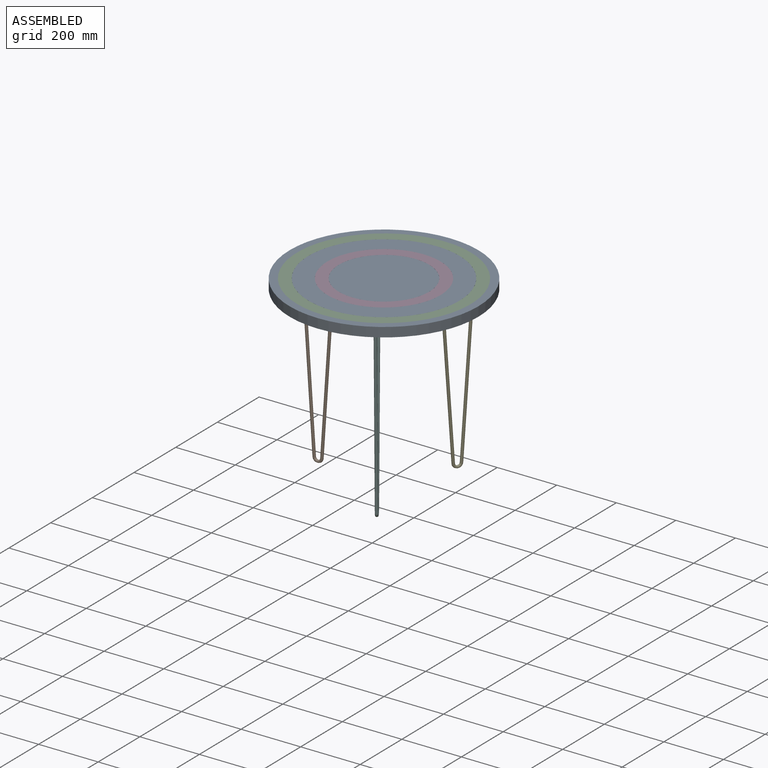
[diagram: assembled view]
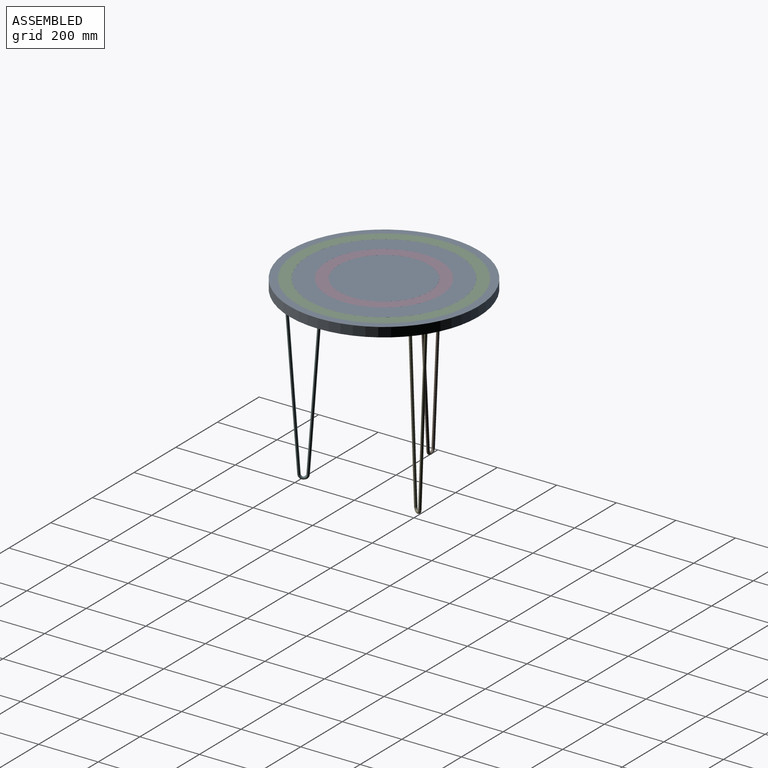
[diagram: assembled view, second angle]
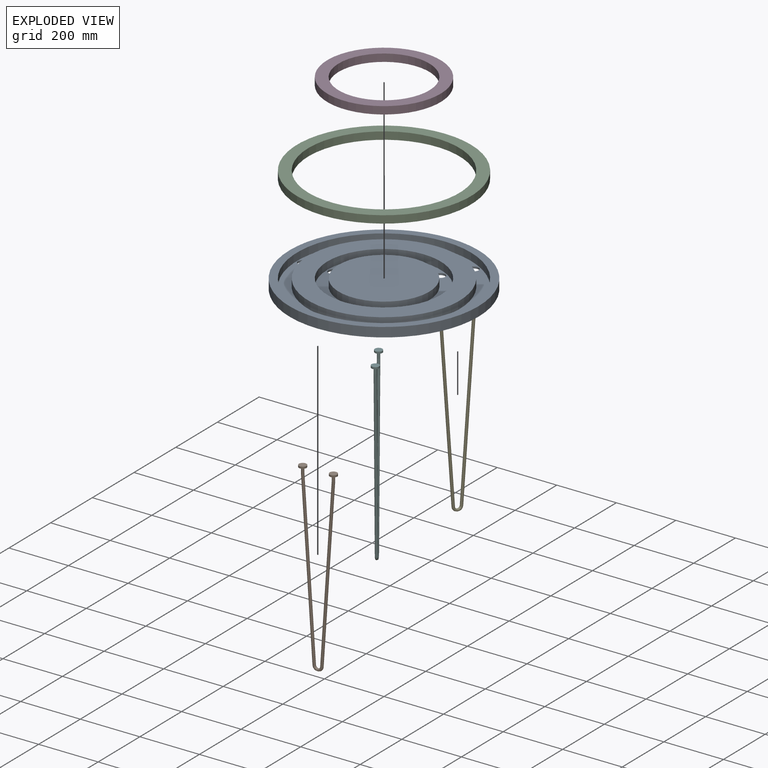
[diagram: exploded view]
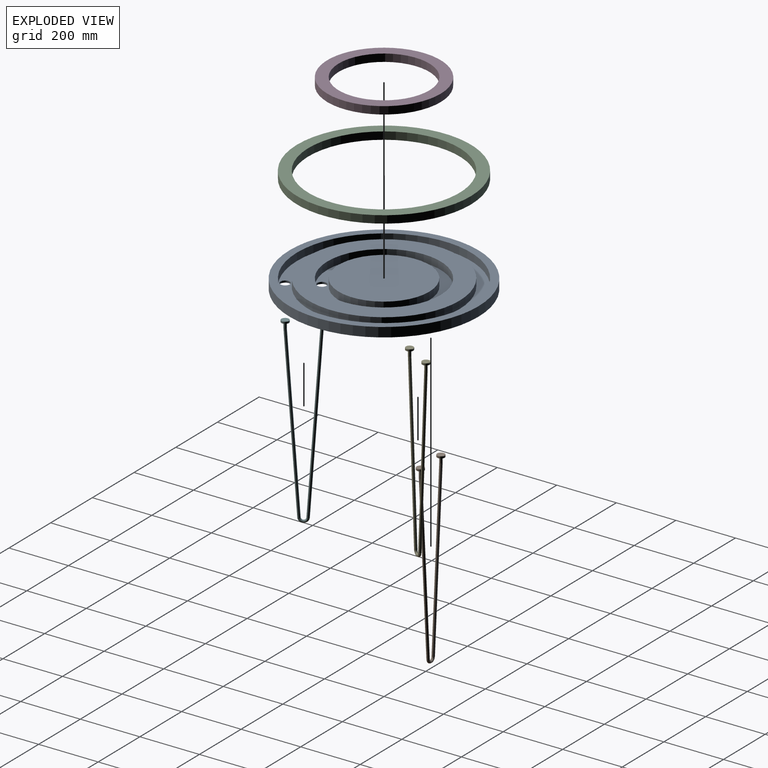
[diagram: exploded view, second angle]
ASSEMBLY  parts=6 mates=7
PART A: 17 faces, bbox 635x635x31.8 mm
  f0: cylinder r=317.5mm len=635mm, axis (0,0,-1), area 63338.4mm2, adj f1,f2
  f1: plane 635x635mm, normal (0,0,1), area 48643.9mm2, adj f0,f4
  f2: plane 635x635mm, normal (0,0,-1), area 311941.8mm2, adj f0,f11,f12,f13,f14,f15,f16
  f3: cylinder r=254mm len=508mm, axis (0,0,1), area 40536.6mm2, adj f5,f6
  f4: cylinder r=292.1mm len=584.2mm, axis (0,0,1), area 46617.1mm2, adj f1,f5
  f5: plane 584.2x584.2mm, normal (0,0,1), area 62990.1mm2, adj f3,f4,f14,f15,f16
  f6: plane 508x508mm, normal (0,0,1), area 88673.8mm2, adj f3,f8
  f7: cylinder r=152.4mm len=304.8mm, axis (0,0,1), area 24322mm2, adj f9,f10
  f8: cylinder r=190.5mm len=381mm, axis (0,0,1), area 30402.4mm2, adj f6,f9
  f9: plane 381x381mm, normal (0,0,1), area 38668.1mm2, adj f7,f8,f11,f12,f13
  f10: plane 304.8x304.8mm, normal (0,0,1), area 72965.9mm2, adj f7
  f11: cylinder r=15.88mm len=31.75mm, axis (0,0,1), area 633.4mm2, adj f2,f9
  f12: cylinder r=15.88mm len=31.75mm, axis (0,0,1), area 633.4mm2, adj f2,f9
  f13: cylinder r=15.88mm len=31.75mm, axis (0,0,1), area 633.4mm2, adj f2,f9
  f14: cylinder r=15.88mm len=31.75mm, axis (0,0,1), area 633.4mm2, adj f2,f5
  f15: cylinder r=15.88mm len=31.75mm, axis (0,0,1), area 633.4mm2, adj f2,f5
  f16: cylinder r=15.88mm len=31.75mm, axis (0,0,1), area 633.4mm2, adj f2,f5
PART B: 13 faces, bbox 128.4x26.8x614.7 mm
  f0: cylinder r=4.76mm len=19.05mm, axis (0,0,-1), area 570mm2, adj f6,f11
  f1: cylinder r=4.76mm len=19.05mm, axis (0,0,-1), area 570mm2, adj f4,f8
  f2: plane 10.87x6.11mm, normal (0.13,0,0.99), area 35.6mm2, adj f3,f5
  f3: bspline ~34.73x16.66mm, area 1140.6mm2, adj f2,f4,f6
  f4: bspline ~571.92x47.65mm, area 17166.1mm2, adj f1,f3
  f5: plane 10.88x6.15mm, normal (0,0,-1), area 35.6mm2, adj f2,f6
  f6: bspline ~577.64x48.03mm, area 17166.1mm2, adj f0,f3,f5
  f7: cylinder r=12.7mm len=25.4mm, axis (0,0,1), area 506.7mm2, adj f8,f9
  f8: plane 25.4x25.4mm, normal (0,0,-1), area 435.5mm2, adj f1,f7
  f9: plane 25.4x25.4mm, normal (0,0,1), area 506.7mm2, adj f7
  f10: cylinder r=12.7mm len=25.4mm, axis (0,0,1), area 506.7mm2, adj f11,f12
  f11: plane 25.4x25.4mm, normal (0,0,-1), area 435.5mm2, adj f0,f10
  f12: plane 25.4x25.4mm, normal (0,0,1), area 506.7mm2, adj f10
PART C: 34 faces, bbox 584.2x584.2x25.4 mm
  f0: cylinder r=15.88mm len=31.75mm, axis (0,0,-1), area 667.5mm2, adj f1,f3,f5,f6,f8,f9,f10
  f1: plane 99.95x86.98mm, normal (0,0,-1), area 2967.3mm2, adj f0,f2,f8,f9
  f2: cylinder r=15.88mm len=31.75mm, axis (0,0,-1), area 1210.8mm2, adj f1,f3,f7,f8,f9
  f3: plane 96.4x90mm, normal (0,0,1), area 2211.3mm2, adj f0,f2,f4,f5,f6,f8,f9
  f4: plane 7.3x6.13mm, normal (0.77,-0.64,0), area 36.3mm2, adj f3,f5,f6,f10
  f5: cylinder r=277.81mm len=60.89mm, axis (0,0,-1), area 311.3mm2, adj f0,f3,f4,f10
  f6: cylinder r=268.29mm len=58.49mm, axis (0,0,-1), area 299.5mm2, adj f0,f3,f4,f10
  f7: plane 31.75x31.75mm, normal (0,0,-1), area 791.7mm2, adj f2
  f8: cylinder r=355.6mm len=75.21mm, axis (0,0,1), area 625.4mm2, adj f0,f1,f2,f3
  f9: cylinder r=254mm len=68.32mm, axis (0,0,1), area 569.3mm2, adj f0,f1,f2,f3
  f10: plane 584.2x584.2mm, normal (0,0,-1), area 60722.1mm2, adj f0,f4,f5,f6,f17,f18,f19,f20
  f11: plane 31.75x31.75mm, normal (0,0,-1), area 791.7mm2, adj f12
  f12: cylinder r=15.88mm len=31.75mm, axis (0,0,-1), area 1210.8mm2, adj f11,f13,f14,f15,f16
  f13: cylinder r=355.6mm len=92.25mm, axis (0,0,1), area 625.4mm2, adj f12,f14,f16,f20
  f14: plane 107.68x63.72mm, normal (0,0,-1), area 2967.3mm2, adj f12,f13,f15,f20
  f15: cylinder r=254mm len=83.81mm, axis (0,0,1), area 569.3mm2, adj f12,f14,f16,f20
  f16: plane 111.96x62.02mm, normal (0,0,1), area 2211.3mm2, adj f12,f13,f15,f17,f18,f19,f20
  f17: cylinder r=268.29mm len=74.38mm, axis (0,0,-1), area 299.5mm2, adj f10,f16,f19,f20
  f18: cylinder r=277.81mm len=77.26mm, axis (0,0,-1), area 311.3mm2, adj f10,f16,f19,f20
  f19: plane 9.39x3.81mm, normal (0.17,0.98,0), area 36.3mm2, adj f10,f16,f17,f18
  f20: cylinder r=15.88mm len=31.75mm, axis (0,0,-1), area 667.5mm2, adj f10,f13,f14,f15,f16,f17,f18
  f21: cylinder r=254mm len=508mm, axis (0,0,-1), area 40536.6mm2, adj f10,f22
  f22: plane 584.2x584.2mm, normal (0,0,1), area 65365.3mm2, adj f21,f23
  f23: cylinder r=292.1mm len=584.2mm, axis (0,0,-1), area 46617.1mm2, adj f10,f22
  f24: plane 31.75x31.75mm, normal (0,0,-1), area 791.7mm2, adj f25
  f25: cylinder r=15.88mm len=31.75mm, axis (0,0,-1), area 1210.8mm2, adj f24,f26,f27,f28,f29
  f26: cylinder r=355.6mm len=96.68mm, axis (0,0,1), area 625.4mm2, adj f25,f27,f29,f33
  f27: plane 113.65x47.24mm, normal (0,0,-1), area 2967.3mm2, adj f25,f26,f28,f33
  f28: cylinder r=254mm len=87.83mm, axis (0,0,1), area 569.3mm2, adj f25,f27,f29,f33
  f29: plane 109.2x48.18mm, normal (0,0,1), area 2211.3mm2, adj f25,f26,f28,f30,f31,f32,f33
  f30: cylinder r=268.29mm len=76.71mm, axis (0,0,-1), area 299.5mm2, adj f10,f29,f32,f33
  f31: cylinder r=277.81mm len=79.76mm, axis (0,0,-1), area 311.3mm2, adj f10,f29,f32,f33
  f32: plane 8.96x3.81mm, normal (-0.94,-0.34,0), area 36.3mm2, adj f10,f29,f30,f31
  f33: cylinder r=15.88mm len=31.75mm, axis (0,0,-1), area 667.5mm2, adj f10,f26,f27,f28,f29,f30,f31
PART D: 34 faces, bbox 381x381x25.4 mm
  f0: cylinder r=15.88mm len=31.75mm, axis (0,0,-1), area 676.9mm2, adj f2,f4,f5,f7,f8,f9,f10
  f1: cylinder r=15.88mm len=31.75mm, axis (0,0,-1), area 1220.5mm2, adj f2,f6,f7,f8,f9
  f2: plane 72.59x63.47mm, normal (0,0,-1), area 1847.7mm2, adj f0,f1,f8,f9
  f3: plane 7.3x6.12mm, normal (0.77,-0.64,0), area 36.3mm2, adj f4,f5,f7,f10
  f4: cylinder r=176.21mm len=33.93mm, axis (0,0,-1), area 175.8mm2, adj f0,f3,f7,f10
  f5: cylinder r=166.69mm len=31.76mm, axis (0,0,-1), area 164.8mm2, adj f0,f3,f7,f10
  f6: plane 31.75x31.75mm, normal (0,0,-1), area 791.7mm2, adj f1
  f7: plane 68.43x67.05mm, normal (0,0,1), area 1426.5mm2, adj f0,f1,f3,f4,f5,f8,f9
  f8: cylinder r=254mm len=47.46mm, axis (0,0,1), area 394.4mm2, adj f0,f1,f2,f7
  f9: cylinder r=127mm len=39.71mm, axis (0,0,1), area 331.5mm2, adj f0,f1,f2,f7
  f10: plane 381x381mm, normal (0,0,-1), area 37404.6mm2, adj f0,f3,f4,f5,f17,f18,f19,f20
  f11: plane 31.75x31.75mm, normal (0,0,-1), area 791.7mm2, adj f12
  f12: cylinder r=15.88mm len=31.75mm, axis (0,0,-1), area 1220.5mm2, adj f11,f13,f14,f15,f16
  f13: cylinder r=254mm len=58.22mm, axis (0,0,1), area 394.4mm2, adj f12,f14,f16,f20
  f14: plane 73.47x51.53mm, normal (0,0,-1), area 1847.7mm2, adj f12,f13,f15,f20
  f15: cylinder r=127mm len=48.71mm, axis (0,0,1), area 331.5mm2, adj f12,f14,f16,f20
  f16: plane 78.38x49.39mm, normal (0,0,1), area 1426.5mm2, adj f12,f13,f15,f17,f18,f19,f20
  f17: cylinder r=166.69mm len=41.15mm, axis (0,0,-1), area 164.8mm2, adj f10,f16,f19,f20
  f18: cylinder r=176.21mm len=43.89mm, axis (0,0,-1), area 175.8mm2, adj f10,f16,f19,f20
  f19: plane 9.38x3.81mm, normal (0.17,0.98,0), area 36.3mm2, adj f10,f16,f17,f18
  f20: cylinder r=15.88mm len=31.75mm, axis (0,0,-1), area 676.9mm2, adj f10,f13,f14,f15,f16,f17,f18
  f21: cylinder r=152.4mm len=304.8mm, axis (0,0,-1), area 24322mm2, adj f10,f22
  f22: plane 381x381mm, normal (0,0,1), area 41043.3mm2, adj f21,f23
  f23: cylinder r=190.5mm len=381mm, axis (0,0,-1), area 30402.4mm2, adj f10,f22
  f24: plane 31.75x31.75mm, normal (0,0,-1), area 791.7mm2, adj f25
  f25: cylinder r=15.88mm len=31.75mm, axis (0,0,-1), area 1220.5mm2, adj f24,f26,f27,f28,f29
  f26: cylinder r=254mm len=61.02mm, axis (0,0,1), area 394.4mm2, adj f25,f27,f29,f33
  f27: plane 78.45x40.71mm, normal (0,0,-1), area 1847.7mm2, adj f25,f26,f28,f33
  f28: cylinder r=127mm len=51.05mm, axis (0,0,1), area 331.5mm2, adj f25,f27,f29,f33
  f29: plane 73.39x42.01mm, normal (0,0,1), area 1426.5mm2, adj f25,f26,f28,f30,f31,f32,f33
  f30: plane 8.95x3.81mm, normal (-0.94,-0.34,0), area 36.3mm2, adj f10,f29,f31,f32
  f31: cylinder r=166.69mm len=42.09mm, axis (0,0,-1), area 164.8mm2, adj f10,f29,f30,f33
  f32: cylinder r=176.21mm len=44.93mm, axis (0,0,-1), area 175.8mm2, adj f10,f29,f30,f33
  f33: cylinder r=15.88mm len=31.75mm, axis (0,0,-1), area 676.9mm2, adj f10,f26,f27,f28,f29,f31,f32
PART E: same geometry as B
PART F: same geometry as B
PLACE A rot(axis=(0,0,1),90deg) t=(0,0,0)mm
PLACE B rot(axis=(0,0,-1),178.7deg) t=(-273.05,0,0)mm
PLACE C rot(axis=(0,0,1),10deg) t=(0,0,0)mm
PLACE D rot(axis=(0,0,1),9.3deg) t=(-0.04,0.07,0)mm
PLACE E rot(axis=(0,0,1),61.2deg) t=(136.53,236.47,0)mm
PLACE F rot(axis=(0,0,1),120deg) t=(85.72,-148.48,0)mm
MATE revolute B.f10 <-> C.f12  axis (0,0,1) through (-273.05,0,25.4)mm
MATE revolute B.f7 <-> D.f12  axis (0,0,1) through (-171.48,2.28,25.4)mm
MATE revolute B.f0 <-> A.f16  axis (0,0,1) through (-273.05,0,0)mm
MATE revolute F.f1 <-> A.f15  axis (0,0,1) through (136.52,-236.47,0)mm
MATE revolute E.f10 <-> C.f2  axis (0,0,1) through (136.53,236.47,25.4)mm
MATE revolute E.f0 <-> A.f14  axis (0,0,1) through (136.53,236.47,0)mm
MATE revolute E.f7 <-> D.f1  axis (0,0,1) through (87.59,147.43,25.4)mm
